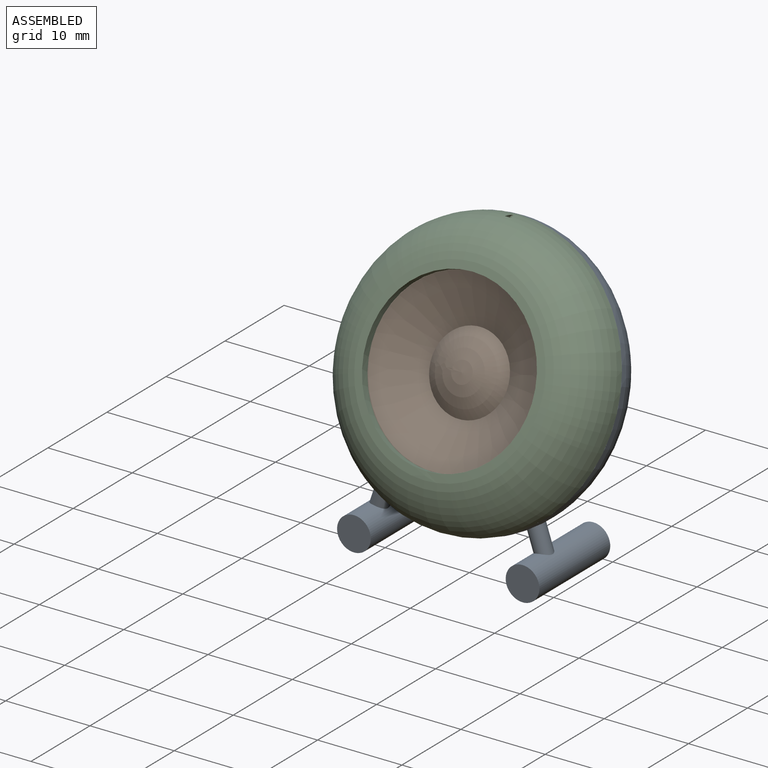
[diagram: assembled view]
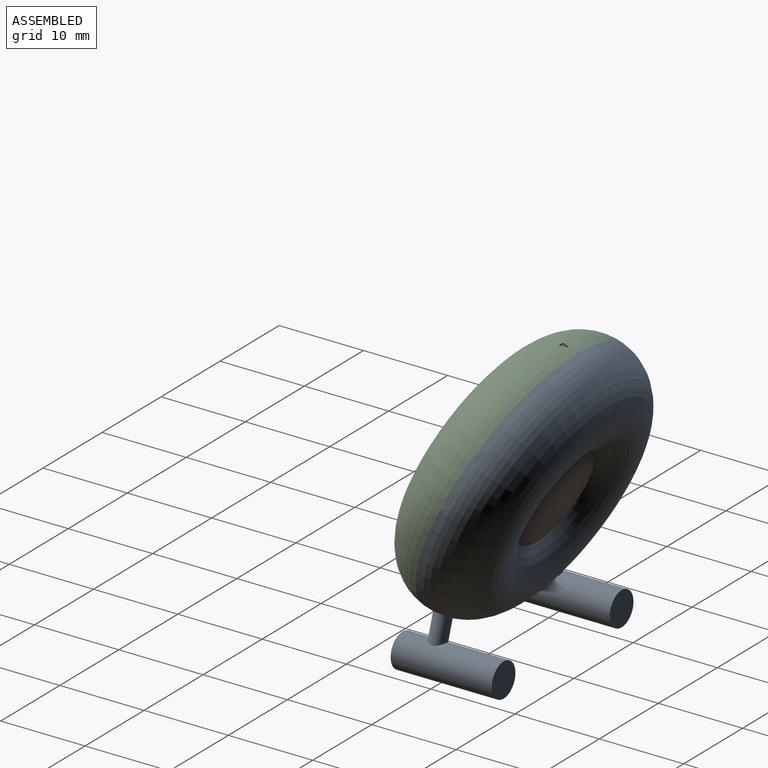
[diagram: assembled view, second angle]
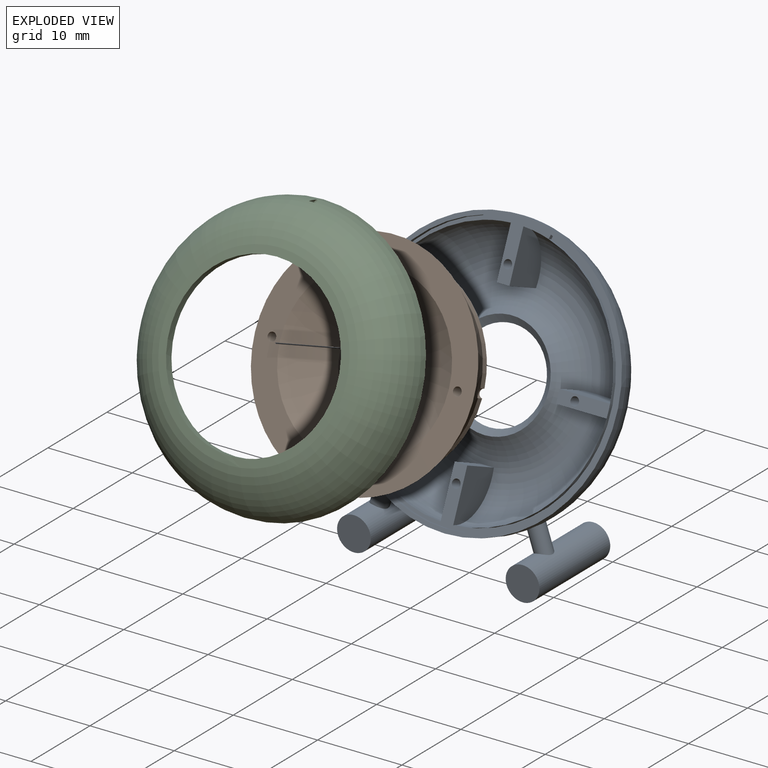
[diagram: exploded view]
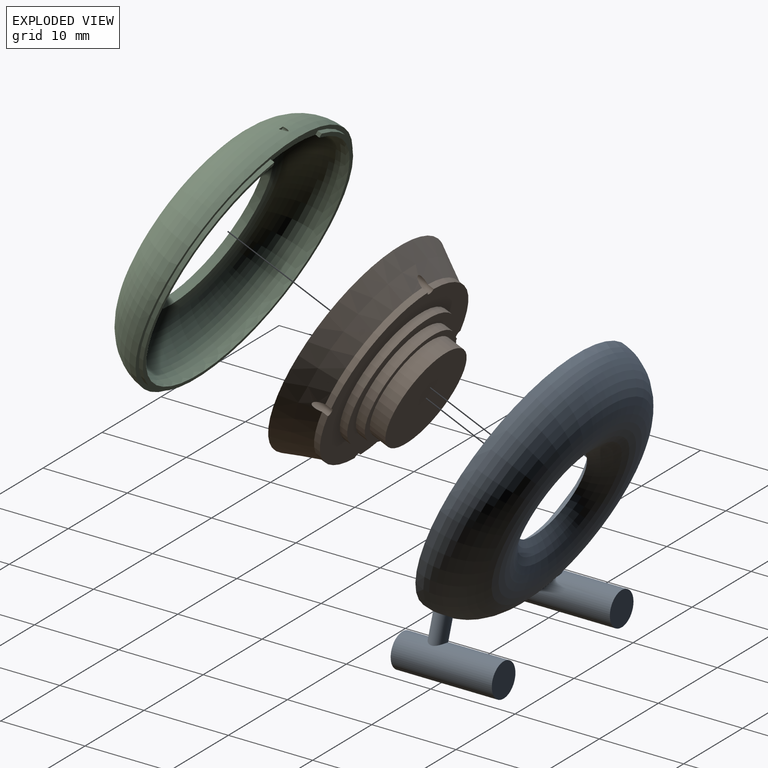
[diagram: exploded view, second angle]
ASSEMBLY  parts=3 mates=2
PART A: 40 faces, bbox 34.9x20.3x35.1 mm
  f0: plane 6.01x1.38mm, normal (0,-0.92,0.4), area 8.2mm2, adj f16,f17,f18,f29,f35
  f1: plane 5.52x2.39mm, normal (0,-0.92,0.4), area 8.2mm2, adj f19,f20,f21,f27,f35
  f2: plane 6.01x1.38mm, normal (0,-0.92,0.4), area 8.2mm2, adj f22,f23,f24,f25,f35
  f3: plane 32x29.37mm, normal (0,-0.92,0.4), area 61.7mm2, adj f10,f12,f13,f14,f15,f31,f36,f37
  f4: cylinder r=2mm len=12mm, axis (0,1,0), area 147.5mm2, adj f5,f6,f34
  f5: plane 4.06x4.06mm, normal (0,1,0), area 12.5mm2, adj f4
  f6: plane 4.06x4.06mm, normal (0,-1,0), area 12.5mm2, adj f4
  f7: cylinder r=2mm len=12mm, axis (0,1,0), area 147.5mm2, adj f8,f9,f33
  f8: plane 4.06x4.06mm, normal (0,1,0), area 12.5mm2, adj f7
  f9: plane 4.06x4.06mm, normal (0,-1,0), area 12.5mm2, adj f7
  f10: torus R=10mm, axis (0,-0.92,0.4), area 1071mm2, adj f3,f11,f33,f34
  f11: cone r=6mm half-angle=53.1deg, axis (0,-0.92,0.4), area 35.2mm2, adj f10,f12
  f12: torus R=10mm, axis (0,-0.92,0.4), area 820.1mm2, adj f3,f11,f13,f14,f15,f16,f17,f18
  f13: plane 4.56x2.01mm, normal (0,-0.4,-0.92), area 7.3mm2, adj f3,f12,f14,f15
  f14: plane 7.7x5.65mm, normal (-1,0,0), area 24.5mm2, adj f3,f12,f13
  f15: plane 7.7x5.65mm, normal (1,0,0), area 24.5mm2, adj f3,f12,f13
  f16: plane 6.24x4.85mm, normal (0,0.4,0.92), area 24.5mm2, adj f0,f12,f17
  f17: plane 5.16x3.39mm, normal (1,0,0), area 7.3mm2, adj f0,f12,f16,f18
  f18: plane 6.24x4.85mm, normal (0,-0.4,-0.92), area 24.5mm2, adj f0,f12,f17
  f19: plane 7.14x6.16mm, normal (-1,0,0), area 24.5mm2, adj f1,f12,f20
  f20: plane 4.52x1.96mm, normal (0,0.4,0.92), area 7.3mm2, adj f1,f12,f19,f21
  f21: plane 7.14x6.16mm, normal (1,0,0), area 24.5mm2, adj f1,f12,f20
  f22: plane 6.24x4.85mm, normal (0,-0.4,-0.92), area 24.5mm2, adj f2,f12,f23
  f23: plane 5.1x3.32mm, normal (-1,0,0), area 7.3mm2, adj f2,f12,f22,f24
  f24: plane 6.24x4.85mm, normal (0,0.4,0.92), area 24.5mm2, adj f2,f12,f23
  f25: cylinder r=0.5mm len=4.99mm, axis (0,-0.92,0.4), area 15.7mm2, adj f2,f26
  f26: plane 1x0.92mm, normal (0,-0.92,0.4), area 0.8mm2, adj f25
  f27: cylinder r=0.5mm len=4.99mm, axis (0,-0.92,0.4), area 15.7mm2, adj f1,f28
  f28: plane 1x0.92mm, normal (0,-0.92,0.4), area 0.8mm2, adj f27
  f29: cylinder r=0.5mm len=4.99mm, axis (0,-0.92,0.4), area 15.7mm2, adj f0,f30
  f30: plane 1x0.92mm, normal (0,-0.92,0.4), area 0.8mm2, adj f29
  f31: cylinder r=0.5mm len=4.99mm, axis (0,-0.92,0.4), area 15.7mm2, adj f3,f32
  f32: plane 1x0.92mm, normal (0,-0.92,0.4), area 0.8mm2, adj f31
  f33: cylinder r=1mm len=3.74mm, axis (0.32,0,-0.95), area 17mm2, adj f7,f10
  f34: cylinder r=1mm len=3.73mm, axis (-0.32,0,-0.95), area 17mm2, adj f4,f10
  f35: cylinder r=15mm len=30mm, axis (0,-0.92,0.4), area 43.2mm2, adj f0,f1,f2,f12,f36,f38,f39
  f36: plane 0.65x0.64mm, normal (-0.97,-0.1,-0.24), area 0.3mm2, adj f3,f35,f37,f39
  f37: cylinder r=15.5mm len=31mm, axis (0,-0.92,0.4), area 44.6mm2, adj f3,f36,f38,f39
  f38: plane 0.65x0.64mm, normal (0.97,-0.1,-0.24), area 0.3mm2, adj f3,f35,f37,f39
  f39: plane 31x27.97mm, normal (0,-0.92,0.4), area 43.9mm2, adj f35,f36,f37,f38
PART B: 19 faces, bbox 26x26x9 mm
  f0: cylinder r=10.95mm len=10.44mm, axis (0,0,-1), area 12.3mm2, adj f4,f6,f15,f18
  f1: cylinder r=10.95mm len=10.44mm, axis (0,0,-1), area 12.3mm2, adj f4,f6,f17,f18
  f2: cylinder r=10.95mm len=10.44mm, axis (0,0,-1), area 12.3mm2, adj f4,f6,f16,f17
  f3: cylinder r=8.01mm len=16.03mm, axis (0,0,-1), area 48.1mm2, adj f4,f14
  f4: plane 21.88x21.88mm, normal (0,0,-1), area 173.6mm2, adj f0,f1,f2,f3,f5,f15,f16,f17
  f5: cylinder r=10.95mm len=10.44mm, axis (0,0,-1), area 12.3mm2, adj f4,f6,f15,f16
  f6: cone r=13mm half-angle=26.4deg, axis (0,0,1), area 342.9mm2, adj f0,f1,f2,f5,f7,f15,f16,f17
  f7: plane 26x26mm, normal (0,0,1), area 213.6mm2, adj f6,f8,f15,f16,f17,f18
  f8: cone r=10mm half-angle=64.2deg, axis (0,0,1), area 274.1mm2, adj f7,f9
  f9: sphere r=7.9mm, area 74.3mm2, adj f8
  f10: plane 12x12mm, normal (0,0,-1), area 113.1mm2, adj f11
  f11: cylinder r=6mm len=12mm, axis (0,0,-1), area 75.4mm2, adj f10,f12
  f12: plane 13.49x13.49mm, normal (0,0,-1), area 29.9mm2, adj f11,f13
  f13: cylinder r=6.75mm len=13.49mm, axis (0,0,-1), area 49mm2, adj f12,f14
  f14: plane 16.03x16.03mm, normal (0,0,-1), area 58.8mm2, adj f3,f13
  f15: cylinder r=0.5mm len=4.89mm, axis (0,0,1), area 12.9mm2, adj f0,f4,f5,f6,f7
  f16: cylinder r=0.5mm len=4.89mm, axis (0,0,1), area 12.9mm2, adj f2,f4,f5,f6,f7
  f17: cylinder r=0.5mm len=4.89mm, axis (0,0,1), area 12.9mm2, adj f1,f2,f4,f6,f7
  f18: cylinder r=0.5mm len=4.89mm, axis (0,0,1), area 12.9mm2, adj f0,f1,f4,f6,f7
PART C: 13 faces, bbox 34.6x16.9x31.8 mm
  f0: cylinder r=0.38mm len=2.13mm, axis (0,0.92,-0.4), area 3.1mm2, adj f2,f3,f5,f6,f7
  f1: cylinder r=10mm len=20mm, axis (0,-0.92,0.4), area 62.8mm2, adj f3,f4
  f2: plane 32x29.37mm, normal (0,0.92,-0.4), area 53.5mm2, adj f0,f3,f4,f6,f9,f10,f11
  f3: torus R=10mm, axis (0,-0.92,0.4), area 818mm2, adj f0,f1,f2,f5
  f4: torus R=10mm, axis (0,-0.92,0.4), area 650.6mm2, adj f1,f2,f8
  f5: plane 0.75x0.47mm, normal (0,0.92,-0.4), area 0.3mm2, adj f0,f3
  f6: cylinder r=0.38mm len=1.06mm, axis (0,0.92,-0.4), area 1.2mm2, adj f0,f2,f7
  f7: plane 0.75x0.67mm, normal (0,-0.92,0.4), area 0.4mm2, adj f0,f6
  f8: cylinder r=15mm len=30mm, axis (0,-0.92,0.4), area 43.2mm2, adj f4,f9,f11,f12
  f9: plane 0.65x0.65mm, normal (0.97,0.1,0.24), area 0.3mm2, adj f2,f8,f10,f12
  f10: cylinder r=15.5mm len=31mm, axis (0,-0.92,0.4), area 44.6mm2, adj f2,f9,f11,f12
  f11: plane 0.65x0.65mm, normal (-0.97,0.1,0.24), area 0.3mm2, adj f2,f8,f10,f12
  f12: plane 31x27.97mm, normal (0,0.92,-0.4), area 43.8mm2, adj f8,f9,f10,f11
PLACE A t=(-0.9,-21.98,11.45)mm
PLACE B rot(axis=(1,0,0),66.6deg) t=(-0.9,-22.8,28.8)mm
PLACE C t=(-0.9,-21.99,11.44)mm
MATE fastened A.f25 <-> B.f15  axis (0,-0.92,0.4) through (10.1,-26.57,30.44)mm
MATE fastened C.f2 <-> A.f3  axis (0,0.92,-0.4) through (-4.91,-20.63,44.18)mm
